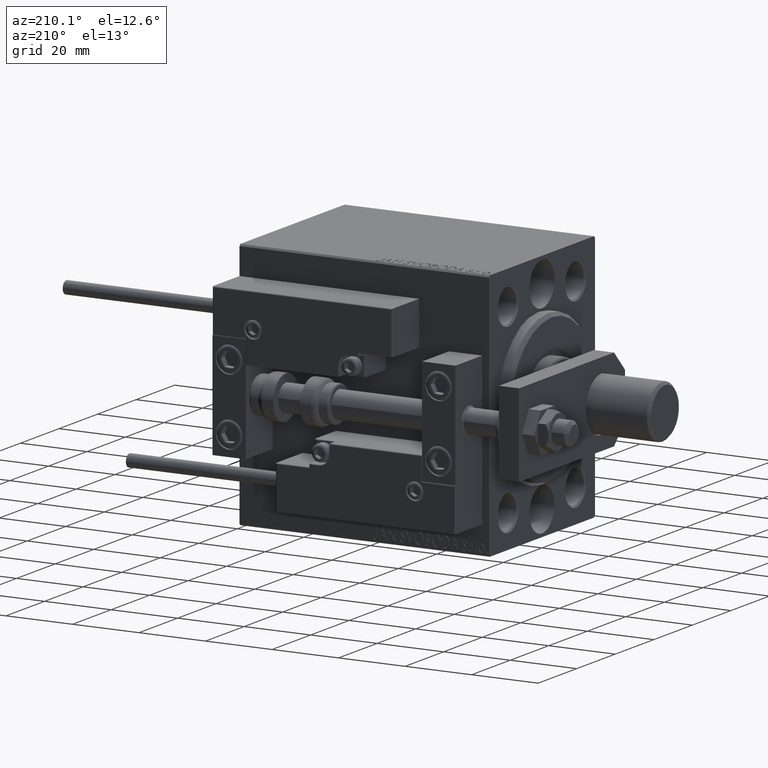
[diagram: clean part render]
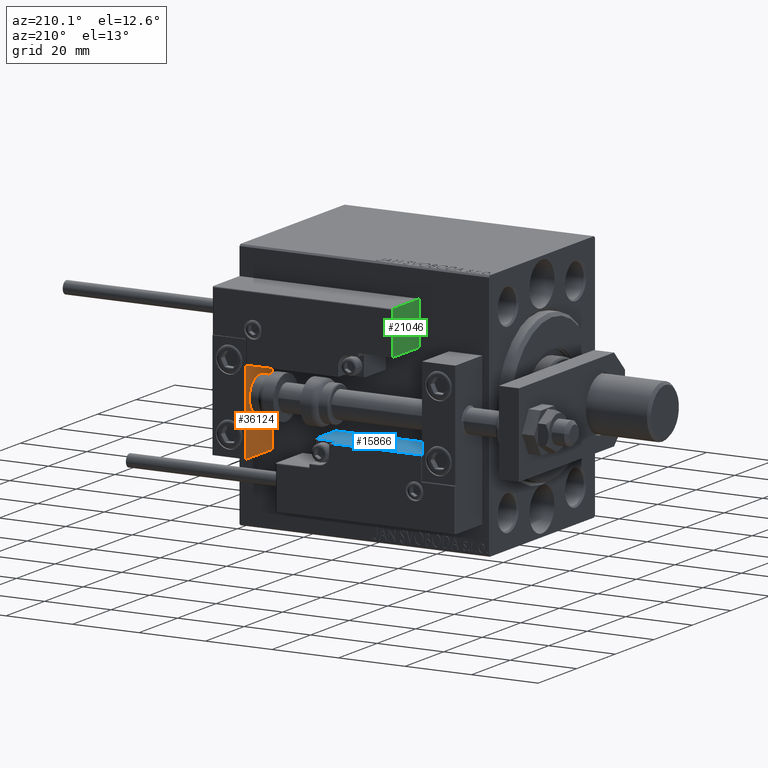
[diagram: same view with three faces highlighted in distinct colors, each labeled with its STEP entity id]
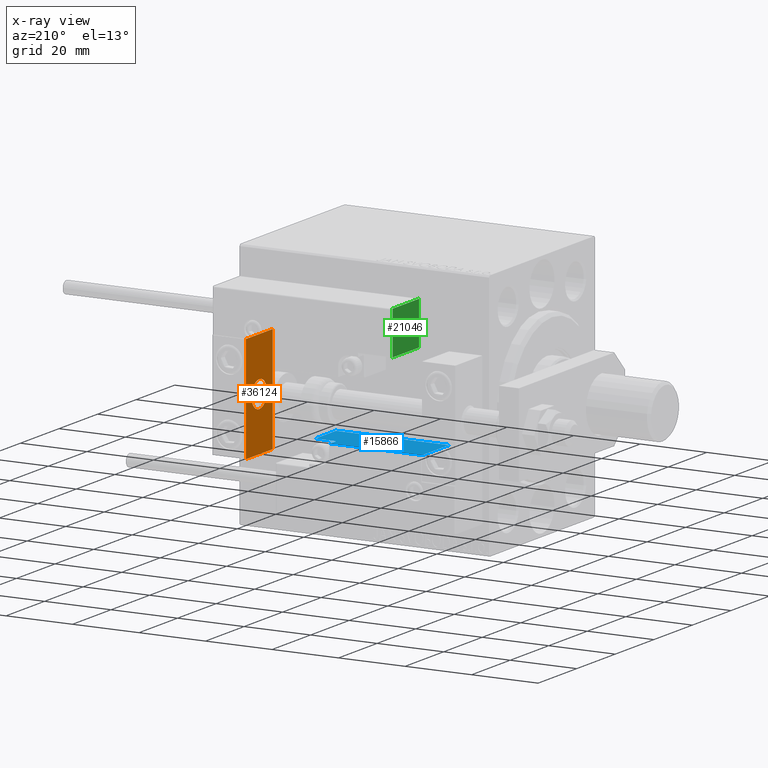
[diagram: x-ray of the same camera — body ghosted, the three highlighted faces saturated]
A machine part, auxiliary view with three faces highlighted in distinct colors.
The next image is the same camera in x-ray (body ghosted, the three faces saturated) — at least one of them is partly hidden behind the body in this view.
Their STEP definitions:

[orange] entity #36124 — the highlighted planar face has unit normal (-1, 0, 0).
#90 = CARTESIAN_POINT ( 'NONE',  ( 0.000000000000000000, 0.000000000000000000, 0.000000000000000000 ) ) ;
#610 = CARTESIAN_POINT ( 'NONE',  ( 0.000000000000000000, 0.000000000000000000, 4.000000000000000000 ) ) ;
#1227 = FACE_BOUND ( 'NONE', #50986, .T. ) ;
#2249 = CIRCLE ( 'NONE', #14730, 4.000000000000000000 ) ;
#3334 = ORIENTED_EDGE ( 'NONE', *, *, #51061, .F. ) ;
#4567 = DIRECTION ( 'NONE',  ( 0.000000000000000000, 0.000000000000000000, -1.000000000000000000 ) ) ;
#4899 = DIRECTION ( 'NONE',  ( -1.000000000000000000, 0.000000000000000000, -0.000000000000000000 ) ) ;
#5107 = EDGE_CURVE ( 'NONE', #35538, #8590, #50138, .T. ) ;
#5194 = EDGE_CURVE ( 'NONE', #9698, #44252, #2249, .T. ) ;
#6037 = VECTOR ( 'NONE', #4567, 1000.000000000000000 ) ;
#6945 = EDGE_LOOP ( 'NONE', ( #3334, #20788, #7020, #30886 ) ) ;
#7020 = ORIENTED_EDGE ( 'NONE', *, *, #9841, .T. ) ;
#8590 = VERTEX_POINT ( 'NONE', #34557 ) ;
#8651 = AXIS2_PLACEMENT_3D ( 'NONE', #90, #35536, #15968 ) ;
#9698 = VERTEX_POINT ( 'NONE', #24125 ) ;
#9841 = EDGE_CURVE ( 'NONE', #43488, #35538, #16022, .T. ) ;
#11325 = DIRECTION ( 'NONE',  ( 0.000000000000000000, -1.000000000000000000, 0.000000000000000000 ) ) ;
#12940 = CARTESIAN_POINT ( 'NONE',  ( 0.000000000000000000, 0.000000000000000000, 0.000000000000000000 ) ) ;
#13517 = EDGE_CURVE ( 'NONE', #44252, #9698, #46947, .T. ) ;
#13712 = CARTESIAN_POINT ( 'NONE',  ( 0.000000000000000000, 7.000000000000000000, -16.00000000000000711 ) ) ;
#13903 = VECTOR ( 'NONE', #11325, 1000.000000000000000 ) ;
#14730 = AXIS2_PLACEMENT_3D ( 'NONE', #23324, #15740, #15989 ) ;
#15740 = DIRECTION ( 'NONE',  ( -1.000000000000000000, -0.000000000000000000, -0.000000000000000000 ) ) ;
#15968 = DIRECTION ( 'NONE',  ( 0.000000000000000000, 0.000000000000000000, 1.000000000000000000 ) ) ;
#15989 = DIRECTION ( 'NONE',  ( 0.000000000000000000, 0.000000000000000000, 1.000000000000000000 ) ) ;
#16022 = LINE ( 'NONE', #28021, #6037 ) ;
#16762 = VERTEX_POINT ( 'NONE', #23537 ) ;
#17624 = EDGE_CURVE ( 'NONE', #43488, #16762, #25428, .T. ) ;
#20788 = ORIENTED_EDGE ( 'NONE', *, *, #17624, .F. ) ;
#23324 = CARTESIAN_POINT ( 'NONE',  ( 0.000000000000000000, 0.000000000000000000, 0.000000000000000000 ) ) ;
#23537 = CARTESIAN_POINT ( 'NONE',  ( 0.000000000000000000, -7.000000000000000000, 15.99999999999999289 ) ) ;
#24125 = CARTESIAN_POINT ( 'NONE',  ( 0.000000000000000000, 4.898587196589412829E-16, -4.000000000000000000 ) ) ;
#24468 = AXIS2_PLACEMENT_3D ( 'NONE', #12940, #4899, #36931 ) ;
#25428 = LINE ( 'NONE', #48857, #37949 ) ;
#25713 = DIRECTION ( 'NONE',  ( 0.000000000000000000, 0.000000000000000000, -1.000000000000000000 ) ) ;
#28021 = CARTESIAN_POINT ( 'NONE',  ( 0.000000000000000000, 7.000000000000000000, 15.99999999999999289 ) ) ;
#28848 = PLANE ( 'NONE',  #24468 ) ;
#30886 = ORIENTED_EDGE ( 'NONE', *, *, #5107, .T. ) ;
#31913 = ORIENTED_EDGE ( 'NONE', *, *, #5194, .F. ) ;
#32486 = DIRECTION ( 'NONE',  ( 0.000000000000000000, -1.000000000000000000, 0.000000000000000000 ) ) ;
#34557 = CARTESIAN_POINT ( 'NONE',  ( 0.000000000000000000, -7.000000000000000000, -16.00000000000000711 ) ) ;
#35536 = DIRECTION ( 'NONE',  ( -1.000000000000000000, -0.000000000000000000, -0.000000000000000000 ) ) ;
#35538 = VERTEX_POINT ( 'NONE', #13712 ) ;
#36124 = ADVANCED_FACE ( 'NONE', ( #1227, #36679 ), #28848, .T. ) ;
#36679 = FACE_OUTER_BOUND ( 'NONE', #6945, .T. ) ;
#36931 = DIRECTION ( 'NONE',  ( -0.000000000000000000, 0.000000000000000000, 1.000000000000000000 ) ) ;
#37949 = VECTOR ( 'NONE', #32486, 1000.000000000000000 ) ;
#39037 = VECTOR ( 'NONE', #25713, 1000.000000000000000 ) ;
#40363 = LINE ( 'NONE', #48189, #39037 ) ;
#43488 = VERTEX_POINT ( 'NONE', #51158 ) ;
#44252 = VERTEX_POINT ( 'NONE', #610 ) ;
#45244 = ORIENTED_EDGE ( 'NONE', *, *, #13517, .F. ) ;
#46947 = CIRCLE ( 'NONE', #8651, 4.000000000000000000 ) ;
#48189 = CARTESIAN_POINT ( 'NONE',  ( 0.000000000000000000, -7.000000000000000000, 15.99999999999999289 ) ) ;
#48857 = CARTESIAN_POINT ( 'NONE',  ( 0.000000000000000000, 7.000000000000000000, 15.99999999999999289 ) ) ;
#50138 = LINE ( 'NONE', #50397, #13903 ) ;
#50397 = CARTESIAN_POINT ( 'NONE',  ( 0.000000000000000000, 7.000000000000000000, -16.00000000000000711 ) ) ;
#50986 = EDGE_LOOP ( 'NONE', ( #45244, #31913 ) ) ;
#51061 = EDGE_CURVE ( 'NONE', #16762, #8590, #40363, .T. ) ;
#51158 = CARTESIAN_POINT ( 'NONE',  ( 0.000000000000000000, 7.000000000000000000, 15.99999999999999289 ) ) ;

[blue] entity #15866 — the highlighted planar face has unit normal (-0, -0, -1).
#9 = CARTESIAN_POINT ( 'NONE',  ( -16.99999999999999289, 3.252606517456513302E-15, 14.00000000000000000 ) ) ;
#486 = VERTEX_POINT ( 'NONE', #43700 ) ;
#540 = CARTESIAN_POINT ( 'NONE',  ( 11.29999999999999893, 3.252606517456513302E-15, 10.69999999999999929 ) ) ;
#2173 = PLANE ( 'NONE',  #16206 ) ;
#2975 = VECTOR ( 'NONE', #18698, 1000.000000000000000 ) ;
#3325 = VERTEX_POINT ( 'NONE', #17827 ) ;
#3770 = VECTOR ( 'NONE', #20567, 1000.000000000000000 ) ;
#3818 = ORIENTED_EDGE ( 'NONE', *, *, #21280, .T. ) ;
#4626 = CARTESIAN_POINT ( 'NONE',  ( 11.29999999999999893, 3.252606517456513302E-15, 11.29999999999999893 ) ) ;
#5833 = DIRECTION ( 'NONE',  ( 0.000000000000000000, -0.000000000000000000, 1.000000000000000000 ) ) ;
#7985 = EDGE_CURVE ( 'NONE', #10870, #32577, #17783, .T. ) ;
#10870 = VERTEX_POINT ( 'NONE', #11432 ) ;
#11432 = CARTESIAN_POINT ( 'NONE',  ( -16.99999999999999289, 3.252606517456513302E-15, 0.000000000000000000 ) ) ;
#11557 = DIRECTION ( 'NONE',  ( -1.000000000000000000, 0.000000000000000000, -0.000000000000000000 ) ) ;
#12947 = CARTESIAN_POINT ( 'NONE',  ( 16.99999999999999289, 3.252606517456513302E-15, 0.000000000000000000 ) ) ;
#13308 = CARTESIAN_POINT ( 'NONE',  ( 16.99999999999999289, 3.252606517456513302E-15, 10.69999999999999929 ) ) ;
#13728 = CIRCLE ( 'NONE', #25383, 0.5999999999999998668 ) ;
#14012 = CARTESIAN_POINT ( 'NONE',  ( 11.00000000000000000, 3.252606517456513302E-15, 10.69999999999999929 ) ) ;
#15674 = ORIENTED_EDGE ( 'NONE', *, *, #25881, .T. ) ;
#15699 = VECTOR ( 'NONE', #11557, 1000.000000000000000 ) ;
#15866 = ADVANCED_FACE ( 'NONE', ( #18577 ), #2173, .F. ) ;
#16206 = AXIS2_PLACEMENT_3D ( 'NONE', #21722, #30574, #5833 ) ;
#16309 = EDGE_CURVE ( 'NONE', #486, #10870, #24242, .T. ) ;
#17783 = LINE ( 'NONE', #25352, #24280 ) ;
#17827 = CARTESIAN_POINT ( 'NONE',  ( 10.70000000000000107, 3.252606517456513302E-15, 13.70000000000000107 ) ) ;
#18039 = DIRECTION ( 'NONE',  ( 1.000000000000000000, 0.000000000000000000, 0.000000000000000000 ) ) ;
#18577 = FACE_OUTER_BOUND ( 'NONE', #34746, .T. ) ;
#18698 = DIRECTION ( 'NONE',  ( -1.000000000000000000, 0.000000000000000000, -0.000000000000000000 ) ) ;
#20567 = DIRECTION ( 'NONE',  ( -0.000000000000000000, -0.000000000000000000, -1.000000000000000000 ) ) ;
#21280 = EDGE_CURVE ( 'NONE', #37736, #27633, #26537, .T. ) ;
#21722 = CARTESIAN_POINT ( 'NONE',  ( -16.99999999999999289, 3.252606517456513302E-15, 14.00000000000000000 ) ) ;
#23334 = ORIENTED_EDGE ( 'NONE', *, *, #51362, .T. ) ;
#24242 = LINE ( 'NONE', #9, #3770 ) ;
#24280 = VECTOR ( 'NONE', #18039, 1000.000000000000000 ) ;
#25352 = CARTESIAN_POINT ( 'NONE',  ( -16.99999999999999289, 3.252606517456513302E-15, 0.000000000000000000 ) ) ;
#25383 = AXIS2_PLACEMENT_3D ( 'NONE', #4626, #44467, #40047 ) ;
#25881 = EDGE_CURVE ( 'NONE', #37346, #3325, #33748, .T. ) ;
#26537 = LINE ( 'NONE', #14012, #2975 ) ;
#27633 = VERTEX_POINT ( 'NONE', #540 ) ;
#27766 = CARTESIAN_POINT ( 'NONE',  ( 10.70000000000000107, 3.252606517456513302E-15, 11.29999999999999893 ) ) ;
#27962 = LINE ( 'NONE', #31106, #15699 ) ;
#30574 = DIRECTION ( 'NONE',  ( 0.000000000000000000, 1.000000000000000000, 0.000000000000000000 ) ) ;
#30623 = VECTOR ( 'NONE', #37402, 1000.000000000000000 ) ;
#31106 = CARTESIAN_POINT ( 'NONE',  ( -16.99999999999999289, 3.252606517456513302E-15, 13.70000000000000107 ) ) ;
#31833 = ORIENTED_EDGE ( 'NONE', *, *, #37900, .F. ) ;
#32577 = VERTEX_POINT ( 'NONE', #12947 ) ;
#32814 = DIRECTION ( 'NONE',  ( -0.000000000000000000, -0.000000000000000000, -1.000000000000000000 ) ) ;
#33748 = LINE ( 'NONE', #41558, #30623 ) ;
#34407 = ORIENTED_EDGE ( 'NONE', *, *, #45700, .F. ) ;
#34746 = EDGE_LOOP ( 'NONE', ( #34407, #3818, #31833, #15674, #23334, #35956, #43572 ) ) ;
#35956 = ORIENTED_EDGE ( 'NONE', *, *, #16309, .T. ) ;
#36722 = CARTESIAN_POINT ( 'NONE',  ( 16.99999999999999289, 3.252606517456513302E-15, 14.00000000000000000 ) ) ;
#37346 = VERTEX_POINT ( 'NONE', #27766 ) ;
#37402 = DIRECTION ( 'NONE',  ( 0.000000000000000000, -0.000000000000000000, 1.000000000000000000 ) ) ;
#37736 = VERTEX_POINT ( 'NONE', #13308 ) ;
#37900 = EDGE_CURVE ( 'NONE', #37346, #27633, #13728, .T. ) ;
#40047 = DIRECTION ( 'NONE',  ( 0.000000000000000000, 0.000000000000000000, 1.000000000000000000 ) ) ;
#40871 = LINE ( 'NONE', #36722, #49650 ) ;
#41558 = CARTESIAN_POINT ( 'NONE',  ( 10.70000000000000107, 3.252606517456513302E-15, 14.00000000000000000 ) ) ;
#43572 = ORIENTED_EDGE ( 'NONE', *, *, #7985, .T. ) ;
#43700 = CARTESIAN_POINT ( 'NONE',  ( -16.99999999999999289, 3.252606517456513302E-15, 13.70000000000000107 ) ) ;
#44467 = DIRECTION ( 'NONE',  ( -0.000000000000000000, -1.000000000000000000, -0.000000000000000000 ) ) ;
#45700 = EDGE_CURVE ( 'NONE', #37736, #32577, #40871, .T. ) ;
#49650 = VECTOR ( 'NONE', #32814, 1000.000000000000000 ) ;
#51362 = EDGE_CURVE ( 'NONE', #3325, #486, #27962, .T. ) ;

[green] entity #21046 — the highlighted planar face has unit normal (1, 0, 0).
#861 = VERTEX_POINT ( 'NONE', #39477 ) ;
#1395 = DIRECTION ( 'NONE',  ( -0.000000000000000000, -0.000000000000000000, -1.000000000000000000 ) ) ;
#1935 = CARTESIAN_POINT ( 'NONE',  ( 27.00000000000006395, 7.000000000000007994, 13.70000000000000107 ) ) ;
#3740 = DIRECTION ( 'NONE',  ( 0.000000000000000000, 1.000000000000000000, 0.000000000000000000 ) ) ;
#3960 = EDGE_CURVE ( 'NONE', #50472, #43817, #46284, .T. ) ;
#4835 = CARTESIAN_POINT ( 'NONE',  ( 27.00000000000006395, 7.000000000000007994, 13.70000000000000107 ) ) ;
#11367 = VERTEX_POINT ( 'NONE', #4835 ) ;
#13358 = CARTESIAN_POINT ( 'NONE',  ( 27.00000000000006395, 7.000000000000007994, 14.00000000000000000 ) ) ;
#14764 = CARTESIAN_POINT ( 'NONE',  ( 27.00000000000006395, 20.00000000000001776, 14.00000000000000000 ) ) ;
#17389 = CARTESIAN_POINT ( 'NONE',  ( 27.00000000000006395, 20.00000000000001776, 0.000000000000000000 ) ) ;
#17559 = DIRECTION ( 'NONE',  ( -0.000000000000000000, -1.000000000000000000, -0.000000000000000000 ) ) ;
#18055 = CARTESIAN_POINT ( 'NONE',  ( 27.00000000000006395, 7.000000000000007994, 14.00000000000000000 ) ) ;
#18309 = DIRECTION ( 'NONE',  ( -1.000000000000000000, 0.000000000000000000, 0.000000000000000000 ) ) ;
#19730 = EDGE_CURVE ( 'NONE', #50472, #11367, #45421, .T. ) ;
#21046 = ADVANCED_FACE ( 'NONE', ( #49045 ), #37605, .F. ) ;
#21389 = VECTOR ( 'NONE', #17559, 1000.000000000000000 ) ;
#21896 = EDGE_CURVE ( 'NONE', #11367, #861, #45149, .T. ) ;
#22177 = VECTOR ( 'NONE', #1395, 1000.000000000000000 ) ;
#23790 = CARTESIAN_POINT ( 'NONE',  ( 27.00000000000006395, 20.00000000000001776, 13.70000000000000107 ) ) ;
#26516 = DIRECTION ( 'NONE',  ( -0.000000000000000000, -0.000000000000000000, -1.000000000000000000 ) ) ;
#27208 = CARTESIAN_POINT ( 'NONE',  ( 27.00000000000006395, 7.000000000000007994, 0.000000000000000000 ) ) ;
#30687 = ORIENTED_EDGE ( 'NONE', *, *, #3960, .F. ) ;
#32195 = VECTOR ( 'NONE', #26516, 1000.000000000000000 ) ;
#33441 = DIRECTION ( 'NONE',  ( 0.000000000000000000, 0.000000000000000000, 1.000000000000000000 ) ) ;
#37605 = PLANE ( 'NONE',  #39606 ) ;
#37673 = ORIENTED_EDGE ( 'NONE', *, *, #51401, .T. ) ;
#38660 = LINE ( 'NONE', #27208, #42382 ) ;
#39477 = CARTESIAN_POINT ( 'NONE',  ( 27.00000000000006395, 7.000000000000007994, 0.000000000000000000 ) ) ;
#39606 = AXIS2_PLACEMENT_3D ( 'NONE', #13358, #18309, #33441 ) ;
#41510 = ORIENTED_EDGE ( 'NONE', *, *, #19730, .T. ) ;
#42382 = VECTOR ( 'NONE', #3740, 1000.000000000000000 ) ;
#43817 = VERTEX_POINT ( 'NONE', #17389 ) ;
#45149 = LINE ( 'NONE', #18055, #22177 ) ;
#45421 = LINE ( 'NONE', #1935, #21389 ) ;
#45846 = ORIENTED_EDGE ( 'NONE', *, *, #21896, .T. ) ;
#46284 = LINE ( 'NONE', #14764, #32195 ) ;
#49045 = FACE_OUTER_BOUND ( 'NONE', #49236, .T. ) ;
#49236 = EDGE_LOOP ( 'NONE', ( #30687, #41510, #45846, #37673 ) ) ;
#50472 = VERTEX_POINT ( 'NONE', #23790 ) ;
#51401 = EDGE_CURVE ( 'NONE', #861, #43817, #38660, .T. ) ;